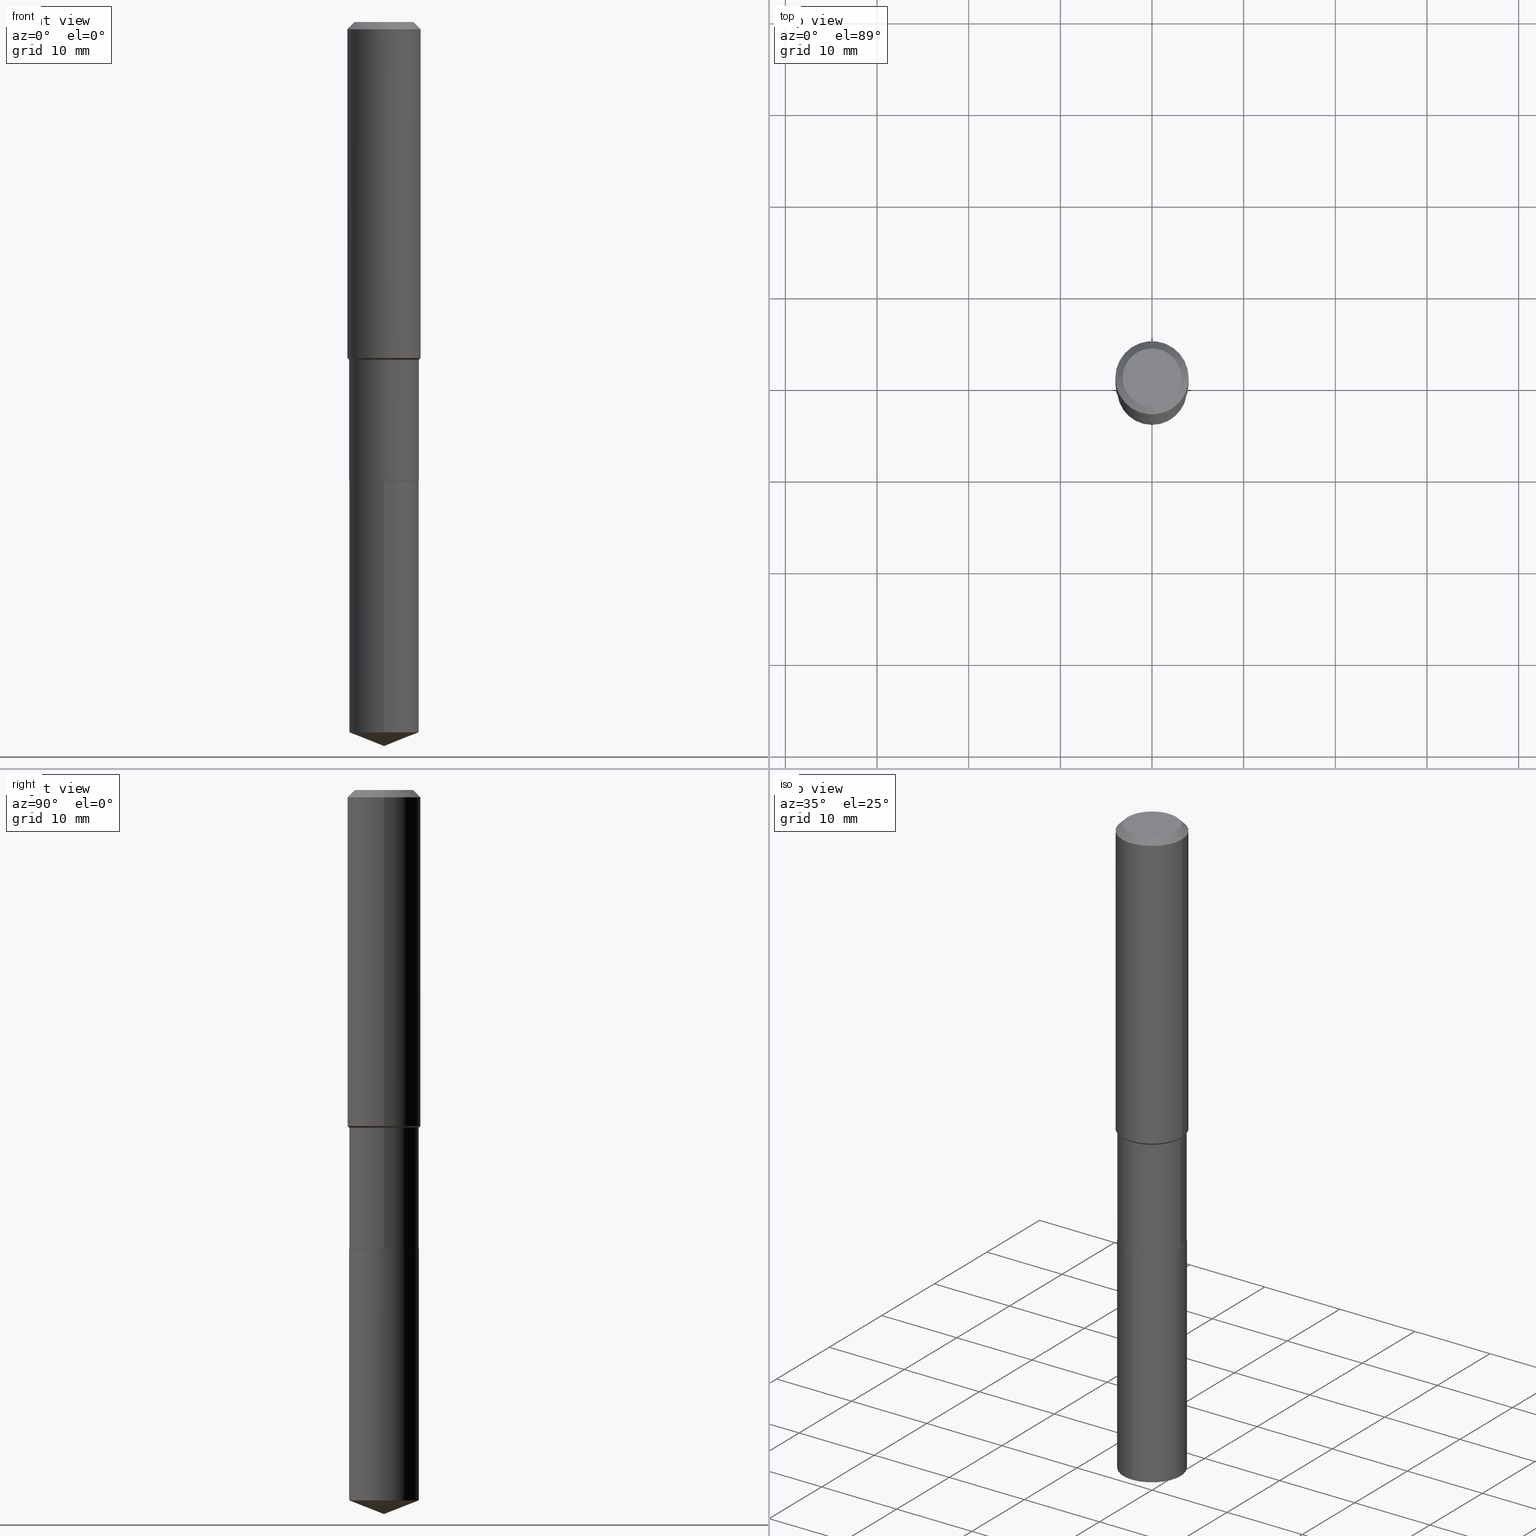
[diagram: canonical four-view strip — front | top / right | iso, engineering-drawing reading convention]
A machine part, canonical four-view strip (front | top / right | iso — engineering-drawing reading convention). The complete STEP part file that produces these views, byte-faithful:
ISO-10303-21;
HEADER;
FILE_DESCRIPTION (( 'STEP AP203' ),
    '1' );
FILE_NAME ('66446.STEP',
    '2024-04-24T22:54:26',
    ( '' ),
    ( '' ),
    'SwSTEP 2.0',
    'SolidWorks 2023',
    '' );
FILE_SCHEMA (( 'CONFIG_CONTROL_DESIGN' ));
ENDSEC;

DATA;
#1 = EDGE_CURVE ( 'NONE', #205, #141, #234, .T. ) ;
#2 = EDGE_CURVE ( 'NONE', #96, #421, #189, .T. ) ;
#3 = ORIENTED_EDGE ( 'NONE', *, *, #134, .T. ) ;
#4 = CARTESIAN_POINT ( 'NONE',  ( 3.548619784655251556E-29, -5.066488570795288817E-15, -1.451100000000000056 ) ) ;
#5 = ORIENTED_EDGE ( 'NONE', *, *, #190, .F. ) ;
#6 = FACE_OUTER_BOUND ( 'NONE', #327, .T. ) ;
#7 = DIRECTION ( 'NONE',  ( 1.000000000000000000, -6.982962677686265133E-15, 0.000000000000000000 ) ) ;
#8 = CARTESIAN_POINT ( 'NONE',  ( 1.062971932697184699E-15, 0.1495999999999931551, -1.968500000000000583 ) ) ;
#9 = DIRECTION ( 'NONE',  ( -2.445468806185136597E-29, 3.491481338843145583E-15, 1.000000000000000000 ) ) ;
#10 = AXIS2_PLACEMENT_3D ( 'NONE', #430, #93, #322 ) ;
#11 = CONICAL_SURFACE ( 'NONE', #281, 0.1495999999999999275, 0.7853981633974492782 ) ;
#12 =( NAMED_UNIT ( * ) PLANE_ANGLE_UNIT ( ) SI_UNIT ( $, .RADIAN. ) );
#13 = LOCAL_TIME ( 18, 54, 26.00000000000000000, #299 ) ;
#14 = EDGE_LOOP ( 'NONE', ( #277, #330, #348, #315 ) ) ;
#15 = ORIENTED_EDGE ( 'NONE', *, *, #476, .T. ) ;
#16 = VECTOR ( 'NONE', #362, 39.37007874015748143 ) ;
#17 = CARTESIAN_POINT ( 'NONE',  ( 7.703226739483226971E-31, -1.099816621735597538E-16, -0.03150000000000019451 ) ) ;
#18 = APPROVAL ( #29, 'UNSPECIFIED' ) ;
#19 = DIRECTION ( 'NONE',  ( -1.000000000000000000, 6.982962677686265922E-15, 0.000000000000000000 ) ) ;
#20 = EDGE_LOOP ( 'NONE', ( #47, #353 ) ) ;
#21 = APPLICATION_PROTOCOL_DEFINITION ( 'international standard', 'config_control_design', 1994, #43 ) ;
#22 = APPLICATION_CONTEXT ( 'configuration controlled 3d designs of mechanical parts and assemblies' ) ;
#23 = EDGE_CURVE ( 'NONE', #183, #356, #64, .T. ) ;
#24 = DIRECTION ( 'NONE',  ( 1.000000000000000000, -6.982962677686267499E-15, 0.000000000000000000 ) ) ;
#25 = APPROVAL_DATE_TIME ( #154, #194 ) ;
#26 = VECTOR ( 'NONE', #287, 39.37007874015748143 ) ;
#27 =( GEOMETRIC_REPRESENTATION_CONTEXT ( 3 ) GLOBAL_UNCERTAINTY_ASSIGNED_CONTEXT ( ( #114 ) ) GLOBAL_UNIT_ASSIGNED_CONTEXT ( ( #291, #12, #112 ) ) REPRESENTATION_CONTEXT ( 'NONE', 'WORKASPACE' ) );
#28 = EDGE_CURVE ( 'NONE', #85, #367, #394, .T. ) ;
#29 = APPROVAL_STATUS ( 'not_yet_approved' ) ;
#30 = PERSON_AND_ORGANIZATION ( #33, #385 ) ;
#31 = CARTESIAN_POINT ( 'NONE',  ( 3.548619784655251556E-29, -5.066488570795288817E-15, -1.451100000000000056 ) ) ;
#32 = DATE_TIME_ROLE ( 'creation_date' ) ;
#33 = PERSON ( 'UNSPECIFIED', 'UNSPECIFIED', 'UNSPECIFIED', ('UNSPECIFIED'), ('UNSPECIFIED'), ('UNSPECIFIED') ) ;
#34 = VECTOR ( 'NONE', #376, 39.37007874015748143 ) ;
#35 = CIRCLE ( 'NONE', #366, 0.1496000000000000107 ) ;
#36 = EDGE_LOOP ( 'NONE', ( #361, #159, #177, #471 ) ) ;
#37 = EDGE_LOOP ( 'NONE', ( #82, #197, #15, #59 ) ) ;
#38 = CARTESIAN_POINT ( 'NONE',  ( -4.719860820353100843E-47, 6.738710358733633822E-33, 1.930043355456229866E-18 ) ) ;
#39 = EDGE_CURVE ( 'NONE', #356, #382, #98, .T. ) ;
#40 = ORIENTED_EDGE ( 'NONE', *, *, #463, .F. ) ;
#41 = CARTESIAN_POINT ( 'NONE',  ( 0.1575000000000000011, -1.209798283909146741E-15, -0.03150000000000019451 ) ) ;
#42 = CARTESIAN_POINT ( 'NONE',  ( 4.813905344975441835E-29, -6.872981015512731707E-15, -1.968500000000000139 ) ) ;
#43 = APPLICATION_CONTEXT ( 'configuration controlled 3d designs of mechanical parts and assemblies' ) ;
#44 = VERTEX_POINT ( 'NONE', #369 ) ;
#45 = DIRECTION ( 'NONE',  ( -6.497071151882122203E-15, -0.9304175679820250178, 0.3665012267242960253 ) ) ;
#46 = DIRECTION ( 'NONE',  ( -2.445468806185136597E-29, 3.491481338843145583E-15, 1.000000000000000000 ) ) ;
#47 = ORIENTED_EDGE ( 'NONE', *, *, #28, .F. ) ;
#48 = LINE ( 'NONE', #354, #71 ) ;
#49 = CARTESIAN_POINT ( 'NONE',  ( 0.000000000000000000, 0.000000000000000000, 0.000000000000000000 ) ) ;
#50 = EDGE_LOOP ( 'NONE', ( #379, #135, #209, #403 ) ) ;
#51 = ADVANCED_FACE ( 'NONE', ( #446 ), #266, .T. ) ;
#52 = CC_DESIGN_PERSON_AND_ORGANIZATION_ASSIGNMENT ( #263, #341, ( #165 ) ) ;
#53 = DIRECTION ( 'NONE',  ( 1.000000000000000000, -6.982962677686265133E-15, 0.000000000000000000 ) ) ;
#54 = AXIS2_PLACEMENT_3D ( 'NONE', #344, #483, #7 ) ;
#55 = ORIENTED_EDGE ( 'NONE', *, *, #184, .F. ) ;
#56 = CARTESIAN_POINT ( 'NONE',  ( 0.1495999999999999275, -6.111139787377153629E-15, -1.451100000000000056 ) ) ;
#57 = ORIENTED_EDGE ( 'NONE', *, *, #1, .F. ) ;
#58 = DIRECTION ( 'NONE',  ( 2.445468806185136597E-29, -3.491481338843145583E-15, -1.000000000000000000 ) ) ;
#59 = ORIENTED_EDGE ( 'NONE', *, *, #23, .F. ) ;
#60 = DIRECTION ( 'NONE',  ( 6.982962677686265922E-15, 1.000000000000000000, -3.491656046039262657E-15 ) ) ;
#61 = DIRECTION ( 'NONE',  ( -2.445346808802135557E-29, 3.491656046039262657E-15, 1.000000000000000000 ) ) ;
#62 = ADVANCED_FACE ( 'NONE', ( #231 ), #88, .T. ) ;
#63 = CIRCLE ( 'NONE', #176, 0.1496000000000000107 ) ;
#64 = LINE ( 'NONE', #195, #212 ) ;
#65 = EDGE_CURVE ( 'NONE', #367, #44, #301, .T. ) ;
#66 = FACE_OUTER_BOUND ( 'NONE', #20, .T. ) ;
#67 = CALENDAR_DATE ( 2024, 24, 4 ) ;
#68 = EDGE_CURVE ( 'NONE', #487, #96, #318, .T. ) ;
#69 = CARTESIAN_POINT ( 'NONE',  ( 1.062971932697157878E-15, 0.1495999999999931274, -1.968500000000000583 ) ) ;
#70 = VECTOR ( 'NONE', #337, 39.37007874015748143 ) ;
#71 = VECTOR ( 'NONE', #92, 39.37007874015748143 ) ;
#72 = APPROVAL_PERSON_ORGANIZATION ( #408, #194, #306 ) ;
#73 = DIRECTION ( 'NONE',  ( -2.445468806185136597E-29, 3.491481338843145583E-15, 1.000000000000000000 ) ) ;
#74 = DIRECTION ( 'NONE',  ( -2.445468806185136597E-29, 3.491481338843145583E-15, 1.000000000000000000 ) ) ;
#75 = MECHANICAL_CONTEXT ( 'NONE', #43, 'mechanical' ) ;
#76 = EDGE_CURVE ( 'NONE', #44, #462, #155, .T. ) ;
#77 = CARTESIAN_POINT ( 'NONE',  ( 4.812682610572349594E-29, -6.871235274843310993E-15, -1.968000000000000194 ) ) ;
#78 = APPLICATION_PROTOCOL_DEFINITION ( 'international standard', 'config_control_design', 1994, #22 ) ;
#79 = CIRCLE ( 'NONE', #99, 0.1496000000000000107 ) ;
#80 = CONICAL_SURFACE ( 'NONE', #359, 99.94676754584030220, 1.195550537616120623 ) ;
#81 = AXIS2_PLACEMENT_3D ( 'NONE', #117, #73, #414 ) ;
#82 = ORIENTED_EDGE ( 'NONE', *, *, #249, .F. ) ;
#83 = DIRECTION ( 'NONE',  ( 1.000000000000000000, -6.982962677686265133E-15, 0.000000000000000000 ) ) ;
#84 = APPROVAL ( #455, 'UNSPECIFIED' ) ;
#85 = VERTEX_POINT ( 'NONE', #106 ) ;
#86 = CARTESIAN_POINT ( 'NONE',  ( -1.044651216581817283E-15, -0.1496000000000068941, -1.968499999999999472 ) ) ;
#87 = CARTESIAN_POINT ( 'NONE',  ( 7.605517644736401976E-29, -1.085974863439131419E-14, -3.110199999999999854 ) ) ;
#88 = CONICAL_SURFACE ( 'NONE', #365, 0.1495999999999999275, 0.7853981633974492782 ) ;
#89 = FACE_OUTER_BOUND ( 'NONE', #418, .T. ) ;
#90 = CONICAL_SURFACE ( 'NONE', #437, 0.1575000000000000011, 0.7853981633974450594 ) ;
#91 = ORIENTED_EDGE ( 'NONE', *, *, #2, .F. ) ;
#92 = DIRECTION ( 'NONE',  ( -2.445468806185136877E-29, 3.491481338843145188E-15, 1.000000000000000000 ) ) ;
#93 = DIRECTION ( 'NONE',  ( -2.445468806185136597E-29, 3.491481338843145583E-15, 1.000000000000000000 ) ) ;
#94 = ORIENTED_EDGE ( 'NONE', *, *, #324, .T. ) ;
#95 = FACE_OUTER_BOUND ( 'NONE', #310, .T. ) ;
#96 = VERTEX_POINT ( 'NONE', #225 ) ;
#97 = CARTESIAN_POINT ( 'NONE',  ( -8.866773861294805176E-28, 1.266073687428369395E-13, 36.25987874015748247 ) ) ;
#98 = CIRCLE ( 'NONE', #371, 0.1575000000000000011 ) ;
#99 = AXIS2_PLACEMENT_3D ( 'NONE', #42, #355, #469 ) ;
#100 = LOCAL_TIME ( 18, 54, 26.00000000000000000, #338 ) ;
#101 = ORIENTED_EDGE ( 'NONE', *, *, #235, .T. ) ;
#102 = ADVANCED_FACE ( 'NONE', ( #296 ), #11, .T. ) ;
#103 = MANIFOLD_SOLID_BREP ( 'Body-Move/Copy2[1]', #490 ) ;
#104 = DIRECTION ( 'NONE',  ( -2.445468806185136597E-29, 3.491481338843145583E-15, 1.000000000000000000 ) ) ;
#105 = AXIS2_PLACEMENT_3D ( 'NONE', #77, #477, #444 ) ;
#106 = CARTESIAN_POINT ( 'NONE',  ( 0.1491000000000000103, -7.914140750755754301E-15, -1.968500000000000139 ) ) ;
#107 = CIRCLE ( 'NONE', #54, 0.1495999999999999275 ) ;
#108 = APPROVAL_PERSON_ORGANIZATION ( #186, #18, #191 ) ;
#109 = DIRECTION ( 'NONE',  ( -6.982962677686265922E-15, -1.000000000000000000, 3.652203200085913145E-15 ) ) ;
#110 = DATE_TIME_ROLE ( 'classification_date' ) ;
#111 = APPROVAL_DATE_TIME ( #478, #18 ) ;
#112 =( NAMED_UNIT ( * ) SI_UNIT ( $, .STERADIAN. ) SOLID_ANGLE_UNIT ( ) );
#113 = AXIS2_PLACEMENT_3D ( 'NONE', #136, #9, #119 ) ;
#114 = UNCERTAINTY_MEASURE_WITH_UNIT (LENGTH_MEASURE( 1.000000000000000082E-05 ), #291, 'distance_accuracy_value', 'NONE');
#115 = CARTESIAN_POINT ( 'NONE',  ( 7.461655936999831044E-29, -1.065364489916640516E-14, -3.051270992848005736 ) ) ;
#116 = DATE_AND_TIME ( #67, #13 ) ;
#117 = CARTESIAN_POINT ( 'NONE',  ( 4.813905344975441835E-29, -6.872981015512731707E-15, -1.968500000000000139 ) ) ;
#118 = MANIFOLD_SOLID_BREP ( 'Body-Move/Copy2[2]', #482 ) ;
#119 = DIRECTION ( 'NONE',  ( 1.000000000000000000, -6.982962677686267499E-15, 4.876176775795936353E-29 ) ) ;
#120 = ORIENTED_EDGE ( 'NONE', *, *, #425, .T. ) ;
#121 = ADVANCED_FACE ( 'NONE', ( #89 ), #377, .T. ) ;
#122 = ORIENTED_EDGE ( 'NONE', *, *, #134, .F. ) ;
#123 = DIRECTION ( 'NONE',  ( -2.445346808802135557E-29, 3.491656046039262657E-15, 1.000000000000000000 ) ) ;
#124 = ADVANCED_FACE ( 'NONE', ( #245 ), #279, .T. ) ;
#125 = DIRECTION ( 'NONE',  ( -2.445346808802135557E-29, 3.491656046039262657E-15, 1.000000000000000000 ) ) ;
#126 = ORIENTED_EDGE ( 'NONE', *, *, #470, .T. ) ;
#127 = ORIENTED_EDGE ( 'NONE', *, *, #309, .T. ) ;
#128 = EDGE_CURVE ( 'NONE', #421, #391, #79, .T. ) ;
#129 = ADVANCED_FACE ( 'NONE', ( #204 ), #288, .T. ) ;
#130 = AXIS2_PLACEMENT_3D ( 'NONE', #360, #145, #19 ) ;
#131 = LOCAL_TIME ( 18, 54, 26.00000000000000000, #375 ) ;
#132 = ORIENTED_EDGE ( 'NONE', *, *, #425, .F. ) ;
#133 = LINE ( 'NONE', #175, #405 ) ;
#134 = EDGE_CURVE ( 'NONE', #166, #141, #133, .T. ) ;
#135 = ORIENTED_EDGE ( 'NONE', *, *, #184, .T. ) ;
#136 = CARTESIAN_POINT ( 'NONE',  ( 0.000000000000000000, 0.000000000000000000, 0.000000000000000000 ) ) ;
#137 = AXIS2_PLACEMENT_3D ( 'NONE', #340, #149, #109 ) ;
#138 = CIRCLE ( 'NONE', #164, 0.1260000000000000009 ) ;
#139 =( LENGTH_UNIT ( ) NAMED_UNIT ( * ) SI_UNIT ( $, .METRE. ) );
#140 = CARTESIAN_POINT ( 'NONE',  ( 7.605517644736401976E-29, -1.085974863439131577E-14, -3.110199999999999854 ) ) ;
#141 = VERTEX_POINT ( 'NONE', #251 ) ;
#142 = CARTESIAN_POINT ( 'NONE',  ( 7.703226739483226971E-31, -1.099816621735597538E-16, -0.03150000000000019451 ) ) ;
#143 = DIRECTION ( 'NONE',  ( 0.7071067811866199593, -2.468850131083015945E-15, 0.7071067811864750752 ) ) ;
#144 = DIRECTION ( 'NONE',  ( 1.000000000000000000, -6.982962677686265133E-15, 0.000000000000000000 ) ) ;
#145 = DIRECTION ( 'NONE',  ( 2.445468806185136597E-29, -3.491481338843145583E-15, -1.000000000000000000 ) ) ;
#146 = EDGE_CURVE ( 'NONE', #462, #44, #63, .T. ) ;
#147 = AXIS2_PLACEMENT_3D ( 'NONE', #280, #390, #357 ) ;
#148 = PRODUCT_DEFINITION ( 'UNKNOWN', '', #151, #347 ) ;
#149 = DIRECTION ( 'NONE',  ( -2.445346808802135557E-29, 3.491656046039262657E-15, 1.000000000000000000 ) ) ;
#150 = APPROVAL_STATUS ( 'not_yet_approved' ) ;
#151 = PRODUCT_DEFINITION_FORMATION_WITH_SPECIFIED_SOURCE ( 'ANY', '', #413, .NOT_KNOWN. ) ;
#152 = CARTESIAN_POINT ( 'NONE',  ( -9.439721640706201686E-47, 1.347742071746726764E-32, 3.860086710912459732E-18 ) ) ;
#153 = PERSON_AND_ORGANIZATION_ROLE ( 'creator' ) ;
#154 = DATE_AND_TIME ( #457, #228 ) ;
#155 = CIRCLE ( 'NONE', #105, 0.1496000000000000107 ) ;
#156 = AXIS2_PLACEMENT_3D ( 'NONE', #241, #246, #392 ) ;
#157 = CARTESIAN_POINT ( 'NONE',  ( -0.1495999999999999830, 1.062971932697109757E-15, -7.358726895021337359E-30 ) ) ;
#158 = PERSON_AND_ORGANIZATION_ROLE ( 'design_owner' ) ;
#159 = ORIENTED_EDGE ( 'NONE', *, *, #276, .T. ) ;
#160 = CARTESIAN_POINT ( 'NONE',  ( 0.1575000000000000011, -1.190510096822576026E-15, -0.03150000000000019451 ) ) ;
#161 = EDGE_CURVE ( 'NONE', #183, #429, #196, .T. ) ;
#162 = ORIENTED_EDGE ( 'NONE', *, *, #65, .F. ) ;
#163 = DIRECTION ( 'NONE',  ( -1.000000000000000000, 6.982962677686265922E-15, -4.876176775795935793E-29 ) ) ;
#164 = AXIS2_PLACEMENT_3D ( 'NONE', #152, #224, #295 ) ;
#165 = SECURITY_CLASSIFICATION ( '', '', #480 ) ;
#166 = VERTEX_POINT ( 'NONE', #56 ) ;
#167 = DIRECTION ( 'NONE',  ( -2.445346808802135557E-29, 3.491656046039262657E-15, 1.000000000000000000 ) ) ;
#168 = CARTESIAN_POINT ( 'NONE',  ( -0.1260000000000000009, 9.348441284752484904E-16, 3.860086710906114178E-18 ) ) ;
#169 = ORIENTED_EDGE ( 'NONE', *, *, #68, .F. ) ;
#170 = LINE ( 'NONE', #160, #411 ) ;
#171 = EDGE_CURVE ( 'NONE', #312, #166, #107, .T. ) ;
#172 = CC_DESIGN_PERSON_AND_ORGANIZATION_ASSIGNMENT ( #30, #297, ( #148 ) ) ;
#173 = ORIENTED_EDGE ( 'NONE', *, *, #470, .F. ) ;
#174 = FACE_OUTER_BOUND ( 'NONE', #431, .T. ) ;
#175 = CARTESIAN_POINT ( 'NONE',  ( 0.1495999999999999275, -6.111139787377153629E-15, -1.451100000000000056 ) ) ;
#176 = AXIS2_PLACEMENT_3D ( 'NONE', #399, #46, #352 ) ;
#177 = ORIENTED_EDGE ( 'NONE', *, *, #476, .F. ) ;
#178 = CYLINDRICAL_SURFACE ( 'NONE', #334, 0.1495999999999999830 ) ;
#179 = ORIENTED_EDGE ( 'NONE', *, *, #39, .F. ) ;
#180 = DIRECTION ( 'NONE',  ( -0.7071067811865482389, 7.493145998870357316E-15, 0.7071067811865467956 ) ) ;
#181 = CC_DESIGN_PERSON_AND_ORGANIZATION_ASSIGNMENT ( #409, #447, ( #151 ) ) ;
#182 = LINE ( 'NONE', #332, #26 ) ;
#183 = VERTEX_POINT ( 'NONE', #168 ) ;
#184 = EDGE_CURVE ( 'NONE', #44, #312, #314, .T. ) ;
#185 = CARTESIAN_POINT ( 'NONE',  ( -0.1575000000000001676, -3.919801059396268302E-15, -1.443199999999999816 ) ) ;
#186 = PERSON_AND_ORGANIZATION ( #33, #385 ) ;
#187 = DIRECTION ( 'NONE',  ( 1.000000000000000000, -6.982962677686265922E-15, 4.876176775795935793E-29 ) ) ;
#188 = VECTOR ( 'NONE', #221, 39.37007874015748854 ) ;
#189 = LINE ( 'NONE', #69, #70 ) ;
#190 = EDGE_CURVE ( 'NONE', #85, #462, #305, .T. ) ;
#191 = APPROVAL_ROLE ( '' ) ;
#192 = DIRECTION ( 'NONE',  ( -2.445468806185136597E-29, 3.491481338843145583E-15, 1.000000000000000000 ) ) ;
#193 = PERSON_AND_ORGANIZATION ( #33, #385 ) ;
#194 = APPROVAL ( #150, 'UNSPECIFIED' ) ;
#195 = CARTESIAN_POINT ( 'NONE',  ( -0.1575000000000000011, 9.898349595620272334E-16, -0.03150000000000019451 ) ) ;
#196 = CIRCLE ( 'NONE', #260, 0.1260000000000000009 ) ;
#197 = ORIENTED_EDGE ( 'NONE', *, *, #448, .T. ) ;
#198 = CC_DESIGN_PERSON_AND_ORGANIZATION_ASSIGNMENT ( #345, #158, ( #413 ) ) ;
#199 = DIRECTION ( 'NONE',  ( 1.000000000000000000, -6.982962677686265133E-15, 0.000000000000000000 ) ) ;
#200 = DIMENSIONAL_EXPONENTS ( 1.000000000000000000, 0.000000000000000000, 0.000000000000000000, 0.000000000000000000, 0.000000000000000000, 0.000000000000000000, 0.000000000000000000 ) ;
#201 = EDGE_LOOP ( 'NONE', ( #247, #215 ) ) ;
#202 = AXIS2_PLACEMENT_3D ( 'NONE', #468, #286, #24 ) ;
#203 = CIRCLE ( 'NONE', #419, 0.1575000000000001676 ) ;
#204 = FACE_OUTER_BOUND ( 'NONE', #36, .T. ) ;
#205 = VERTEX_POINT ( 'NONE', #185 ) ;
#206 = FACE_OUTER_BOUND ( 'NONE', #400, .T. ) ;
#207 = CARTESIAN_POINT ( 'NONE',  ( -0.1495999999999999275, -4.905889990122190345E-15, -1.451100000000000056 ) ) ;
#208 = CARTESIAN_POINT ( 'NONE',  ( -9.439721640706201686E-47, 1.347742071746726764E-32, 3.860086710912459732E-18 ) ) ;
#209 = ORIENTED_EDGE ( 'NONE', *, *, #381, .F. ) ;
#210 = ORIENTED_EDGE ( 'NONE', *, *, #381, .T. ) ;
#211 = CARTESIAN_POINT ( 'NONE',  ( 4.813905344975441835E-29, -6.872981015512731707E-15, -1.968500000000000139 ) ) ;
#212 = VECTOR ( 'NONE', #233, 39.37007874015748143 ) ;
#213 = CIRCLE ( 'NONE', #271, 0.1491000000000000103 ) ;
#214 = ADVANCED_FACE ( 'NONE', ( #66 ), #217, .F. ) ;
#215 = ORIENTED_EDGE ( 'NONE', *, *, #249, .T. ) ;
#216 = CARTESIAN_POINT ( 'NONE',  ( 4.813905344975441835E-29, -6.872981015512731707E-15, -1.968500000000000139 ) ) ;
#217 = PLANE ( 'NONE',  #479 ) ;
#218 = CIRCLE ( 'NONE', #265, 0.1575000000000000011 ) ;
#219 = ORIENTED_EDGE ( 'NONE', *, *, #304, .F. ) ;
#220 = ADVANCED_FACE ( 'NONE', ( #406 ), #466, .T. ) ;
#221 = DIRECTION ( 'NONE',  ( 6.611014441532069744E-15, 0.9304175679820275713, 0.3665012267242894195 ) ) ;
#222 = DATE_AND_TIME ( #417, #273 ) ;
#223 = FACE_OUTER_BOUND ( 'NONE', #50, .T. ) ;
#224 = DIRECTION ( 'NONE',  ( -2.445468806185136597E-29, 3.491481338843145583E-15, 1.000000000000000000 ) ) ;
#225 = CARTESIAN_POINT ( 'NONE',  ( 1.062971932697184502E-15, 0.1495999999999893804, -3.051270992848006181 ) ) ;
#226 = APPROVAL_DATE_TIME ( #222, #84 ) ;
#227 = CONICAL_SURFACE ( 'NONE', #454, 99.94676754584030220, 1.195550537616120623 ) ;
#228 = LOCAL_TIME ( 18, 54, 26.00000000000000000, #264 ) ;
#229 = DIRECTION ( 'NONE',  ( -2.445468806185136597E-29, 3.491481338843145583E-15, 1.000000000000000000 ) ) ;
#230 = CC_DESIGN_DATE_AND_TIME_ASSIGNMENT ( #116, #110, ( #165 ) ) ;
#231 = FACE_OUTER_BOUND ( 'NONE', #461, .T. ) ;
#232 = CALENDAR_DATE ( 2024, 24, 4 ) ;
#233 = DIRECTION ( 'NONE',  ( -0.7071067811865452413, 2.468850131082233000E-15, -0.7071067811865497932 ) ) ;
#234 = CIRCLE ( 'NONE', #202, 0.1575000000000001676 ) ;
#235 = EDGE_CURVE ( 'NONE', #364, #96, #329, .T. ) ;
#236 = VECTOR ( 'NONE', #143, 39.37007874015748143 ) ;
#237 = ORIENTED_EDGE ( 'NONE', *, *, #76, .T. ) ;
#238 = EDGE_LOOP ( 'NONE', ( #210, #126, #420, #122 ) ) ;
#239 = DIRECTION ( 'NONE',  ( 0.7071067811865452413, -7.319954787623248157E-15, -0.7071067811865497932 ) ) ;
#240 = ORIENTED_EDGE ( 'NONE', *, *, #309, .F. ) ;
#241 = CARTESIAN_POINT ( 'NONE',  ( 4.813905344975441835E-29, -6.872981015512731707E-15, -1.968500000000000139 ) ) ;
#242 = AXIS2_PLACEMENT_3D ( 'NONE', #115, #262, #415 ) ;
#243 = CONICAL_SURFACE ( 'NONE', #147, 0.1491000000000000103, 0.7853981633975507526 ) ;
#244 = CARTESIAN_POINT ( 'NONE',  ( 4.813905344975441835E-29, -6.872981015512731707E-15, -1.968500000000000139 ) ) ;
#245 = FACE_OUTER_BOUND ( 'NONE', #321, .T. ) ;
#246 = DIRECTION ( 'NONE',  ( -2.445346808802135557E-29, 3.491656046039262657E-15, 1.000000000000000000 ) ) ;
#247 = ORIENTED_EDGE ( 'NONE', *, *, #161, .T. ) ;
#248 = CARTESIAN_POINT ( 'NONE',  ( 0.1496000000000000107, -7.915886491425176593E-15, -1.968000000000000194 ) ) ;
#249 = EDGE_CURVE ( 'NONE', #429, #183, #138, .T. ) ;
#250 = VECTOR ( 'NONE', #45, 39.37007874015748143 ) ;
#251 = CARTESIAN_POINT ( 'NONE',  ( 0.1575000000000001676, -6.138722489954014963E-15, -1.443199999999999816 ) ) ;
#252 = ORIENTED_EDGE ( 'NONE', *, *, #235, .F. ) ;
#253 = DIRECTION ( 'NONE',  ( 2.445346808802135276E-29, -3.491656046039262657E-15, -1.000000000000000000 ) ) ;
#254 = ORIENTED_EDGE ( 'NONE', *, *, #463, .T. ) ;
#255 = DIRECTION ( 'NONE',  ( -2.438088387897960049E-29, 3.491481338843145188E-15, 1.000000000000000000 ) ) ;
#256 = ADVANCED_FACE ( 'NONE', ( #449 ), #293, .T. ) ;
#257 = PRODUCT_RELATED_PRODUCT_CATEGORY ( 'detail', '', ( #413 ) ) ;
#258 = ORIENTED_EDGE ( 'NONE', *, *, #28, .T. ) ;
#259 = LENGTH_MEASURE_WITH_UNIT ( LENGTH_MEASURE( 0.02539999999999999897 ), #139 );
#260 = AXIS2_PLACEMENT_3D ( 'NONE', #208, #284, #433 ) ;
#261 = APPROVAL_PERSON_ORGANIZATION ( #302, #84, #269 ) ;
#262 = DIRECTION ( 'NONE',  ( -2.445346808802135557E-29, 3.491656046039262657E-15, 1.000000000000000000 ) ) ;
#263 = PERSON_AND_ORGANIZATION ( #33, #385 ) ;
#264 = COORDINATED_UNIVERSAL_TIME_OFFSET ( 5, 0, .BEHIND. ) ;
#265 = AXIS2_PLACEMENT_3D ( 'NONE', #142, #440, #325 ) ;
#266 = CYLINDRICAL_SURFACE ( 'NONE', #137, 0.1496000000000000107 ) ;
#267 = COORDINATED_UNIVERSAL_TIME_OFFSET ( 5, 0, .BEHIND. ) ;
#268 = EDGE_CURVE ( 'NONE', #141, #205, #203, .T. ) ;
#269 = APPROVAL_ROLE ( '' ) ;
#270 = ORIENTED_EDGE ( 'NONE', *, *, #190, .T. ) ;
#271 = AXIS2_PLACEMENT_3D ( 'NONE', #211, #486, #83 ) ;
#272 = ORIENTED_EDGE ( 'NONE', *, *, #439, .T. ) ;
#273 = LOCAL_TIME ( 18, 54, 26.00000000000000000, #267 ) ;
#274 = EDGE_LOOP ( 'NONE', ( #91, #465, #254, #467 ) ) ;
#275 = DIRECTION ( 'NONE',  ( -6.982962677686265922E-15, -1.000000000000000000, 3.652203200085913145E-15 ) ) ;
#276 = EDGE_CURVE ( 'NONE', #205, #356, #339, .T. ) ;
#277 = ORIENTED_EDGE ( 'NONE', *, *, #448, .F. ) ;
#278 = PLANE ( 'NONE',  #326 ) ;
#279 = CYLINDRICAL_SURFACE ( 'NONE', #319, 0.1575000000000000844 ) ;
#280 = CARTESIAN_POINT ( 'NONE',  ( 4.813905344975441835E-29, -6.872981015512731707E-15, -1.968500000000000139 ) ) ;
#281 = AXIS2_PLACEMENT_3D ( 'NONE', #4, #282, #53 ) ;
#282 = DIRECTION ( 'NONE',  ( -2.445468806185136597E-29, 3.491481338843145583E-15, 1.000000000000000000 ) ) ;
#283 = EDGE_LOOP ( 'NONE', ( #162, #272, #270, #323 ) ) ;
#284 = DIRECTION ( 'NONE',  ( -2.445468806185136597E-29, 3.491481338843145583E-15, 1.000000000000000000 ) ) ;
#285 = ADVANCED_FACE ( 'NONE', ( #489 ), #278, .F. ) ;
#286 = DIRECTION ( 'NONE',  ( -2.445468806185136597E-29, 3.491481338843145583E-15, 1.000000000000000000 ) ) ;
#287 = DIRECTION ( 'NONE',  ( -2.445468806185136877E-29, 3.491481338843145188E-15, 1.000000000000000000 ) ) ;
#288 = CYLINDRICAL_SURFACE ( 'NONE', #113, 0.1575000000000000844 ) ;
#289 = CARTESIAN_POINT ( 'NONE',  ( -0.1491000000000000103, -5.810912569320311056E-15, -1.968500000000000139 ) ) ;
#290 = CARTESIAN_POINT ( 'NONE',  ( 4.813905344975441835E-29, -6.872981015512731707E-15, -1.968500000000000139 ) ) ;
#291 =( CONVERSION_BASED_UNIT ( 'INCH', #259 ) LENGTH_UNIT ( ) NAMED_UNIT ( #200 ) );
#292 = AXIS2_PLACEMENT_3D ( 'NONE', #441, #104, #199 ) ;
#293 = CONICAL_SURFACE ( 'NONE', #81, 0.1491000000000000103, 0.7853981633975507526 ) ;
#294 = CC_DESIGN_APPROVAL ( #84, ( #165 ) ) ;
#295 = DIRECTION ( 'NONE',  ( 1.000000000000000000, -6.982962677686265922E-15, 4.876281427513067258E-29 ) ) ;
#296 = FACE_OUTER_BOUND ( 'NONE', #238, .T. ) ;
#297 = PERSON_AND_ORGANIZATION_ROLE ( 'creator' ) ;
#298 = CARTESIAN_POINT ( 'NONE',  ( -0.1491000000000000103, -5.813561796494422257E-15, -1.968500000000000139 ) ) ;
#299 = COORDINATED_UNIVERSAL_TIME_OFFSET ( 5, 0, .BEHIND. ) ;
#300 = VECTOR ( 'NONE', #380, 39.37007874015748143 ) ;
#301 = LINE ( 'NONE', #298, #34 ) ;
#302 = PERSON_AND_ORGANIZATION ( #33, #385 ) ;
#303 = CARTESIAN_POINT ( 'NONE',  ( 3.529300581086388319E-29, -5.038905868218426694E-15, -1.443199999999999816 ) ) ;
#304 = EDGE_CURVE ( 'NONE', #96, #487, #460, .T. ) ;
#305 = LINE ( 'NONE', #456, #236 ) ;
#306 = APPROVAL_ROLE ( '' ) ;
#307 = EDGE_LOOP ( 'NONE', ( #252, #127, #219 ) ) ;
#308 = AXIS2_PLACEMENT_3D ( 'NONE', #290, #192, #144 ) ;
#309 = EDGE_CURVE ( 'NONE', #364, #487, #424, .T. ) ;
#310 = EDGE_LOOP ( 'NONE', ( #258, #346, #378, #5 ) ) ;
#311 = CARTESIAN_POINT ( 'NONE',  ( 7.461655936999831044E-29, -1.065364489916640516E-14, -3.051270992848005736 ) ) ;
#312 = VERTEX_POINT ( 'NONE', #207 ) ;
#313 = CC_DESIGN_PERSON_AND_ORGANIZATION_ASSIGNMENT ( #193, #153, ( #151 ) ) ;
#314 = LINE ( 'NONE', #157, #372 ) ;
#315 = ORIENTED_EDGE ( 'NONE', *, *, #39, .T. ) ;
#316 = ORIENTED_EDGE ( 'NONE', *, *, #68, .T. ) ;
#317 = CYLINDRICAL_SURFACE ( 'NONE', #156, 0.1496000000000000107 ) ;
#318 = CIRCLE ( 'NONE', #242, 0.1496000000000000107 ) ;
#319 = AXIS2_PLACEMENT_3D ( 'NONE', #49, #393, #436 ) ;
#320 = ADVANCED_FACE ( 'NONE', ( #223 ), #178, .T. ) ;
#321 = EDGE_LOOP ( 'NONE', ( #350, #395, #94, #179 ) ) ;
#322 = DIRECTION ( 'NONE',  ( 1.000000000000000000, -6.982962677686265922E-15, 4.876176775795935793E-29 ) ) ;
#323 = ORIENTED_EDGE ( 'NONE', *, *, #76, .F. ) ;
#324 = EDGE_CURVE ( 'NONE', #141, #382, #182, .T. ) ;
#325 = DIRECTION ( 'NONE',  ( 1.000000000000000000, -6.982962677686265922E-15, 0.000000000000000000 ) ) ;
#326 = AXIS2_PLACEMENT_3D ( 'NONE', #38, #349, #163 ) ;
#327 = EDGE_LOOP ( 'NONE', ( #120, #384 ) ) ;
#328 = LINE ( 'NONE', #434, #16 ) ;
#329 = LINE ( 'NONE', #443, #188 ) ;
#330 = ORIENTED_EDGE ( 'NONE', *, *, #161, .F. ) ;
#331 = DATE_AND_TIME ( #370, #100 ) ;
#332 = CARTESIAN_POINT ( 'NONE',  ( 0.1575000000000000844, -1.099816621735587677E-15, 7.679978421878603638E-30 ) ) ;
#333 = CARTESIAN_POINT ( 'NONE',  ( 4.813905344975441835E-29, -6.872981015512731707E-15, -1.968500000000000139 ) ) ;
#334 = AXIS2_PLACEMENT_3D ( 'NONE', #473, #401, #187 ) ;
#335 = ADVANCED_FACE ( 'NONE', ( #435 ), #227, .T. ) ;
#336 = DIRECTION ( 'NONE',  ( 1.000000000000000000, -6.982962677686265922E-15, 0.000000000000000000 ) ) ;
#337 = DIRECTION ( 'NONE',  ( -2.445346808802135557E-29, 3.491656046039262657E-15, 1.000000000000000000 ) ) ;
#338 = COORDINATED_UNIVERSAL_TIME_OFFSET ( 5, 0, .BEHIND. ) ;
#339 = LINE ( 'NONE', #387, #300 ) ;
#340 = CARTESIAN_POINT ( 'NONE',  ( 4.813905344975441835E-29, -6.872981015512731707E-15, -1.968500000000000139 ) ) ;
#341 = PERSON_AND_ORGANIZATION_ROLE ( 'classification_officer' ) ;
#342 = CC_DESIGN_DATE_AND_TIME_ASSIGNMENT ( #331, #32, ( #148 ) ) ;
#343 = AXIS2_PLACEMENT_3D ( 'NONE', #311, #125, #423 ) ;
#344 = CARTESIAN_POINT ( 'NONE',  ( 3.548619784655251556E-29, -5.066488570795288817E-15, -1.451100000000000056 ) ) ;
#345 = PERSON_AND_ORGANIZATION ( #33, #385 ) ;
#346 = ORIENTED_EDGE ( 'NONE', *, *, #65, .T. ) ;
#347 = DESIGN_CONTEXT ( 'detailed design', #22, 'design' ) ;
#348 = ORIENTED_EDGE ( 'NONE', *, *, #23, .T. ) ;
#349 = DIRECTION ( 'NONE',  ( 2.438088387897960049E-29, -3.491481338843145188E-15, -1.000000000000000000 ) ) ;
#350 = ORIENTED_EDGE ( 'NONE', *, *, #276, .F. ) ;
#351 = CC_DESIGN_APPROVAL ( #194, ( #151 ) ) ;
#352 = DIRECTION ( 'NONE',  ( 1.000000000000000000, -6.982962677686268288E-15, 0.000000000000000000 ) ) ;
#353 = ORIENTED_EDGE ( 'NONE', *, *, #439, .F. ) ;
#354 = CARTESIAN_POINT ( 'NONE',  ( 0.1495999999999999830, -1.044651216581865206E-15, 7.294760456590718926E-30 ) ) ;
#355 = DIRECTION ( 'NONE',  ( -2.445346808802135557E-29, 3.491656046039262657E-15, 1.000000000000000000 ) ) ;
#356 = VERTEX_POINT ( 'NONE', #397 ) ;
#357 = DIRECTION ( 'NONE',  ( 1.000000000000000000, -6.982962677686265133E-15, 0.000000000000000000 ) ) ;
#358 = ADVANCED_FACE ( 'NONE', ( #438 ), #90, .T. ) ;
#359 = AXIS2_PLACEMENT_3D ( 'NONE', #432, #167, #488 ) ;
#360 = CARTESIAN_POINT ( 'NONE',  ( 7.703226739483226971E-31, -1.099816621735597538E-16, -0.03150000000000019451 ) ) ;
#361 = ORIENTED_EDGE ( 'NONE', *, *, #268, .T. ) ;
#362 = DIRECTION ( 'NONE',  ( -2.445346808802135557E-29, 3.491656046039262657E-15, 1.000000000000000000 ) ) ;
#363 = DIRECTION ( 'NONE',  ( -1.000000000000000000, 6.982962677686265922E-15, 0.000000000000000000 ) ) ;
#364 = VERTEX_POINT ( 'NONE', #140 ) ;
#365 = AXIS2_PLACEMENT_3D ( 'NONE', #31, #374, #450 ) ;
#366 = AXIS2_PLACEMENT_3D ( 'NONE', #244, #123, #275 ) ;
#367 = VERTEX_POINT ( 'NONE', #289 ) ;
#368 = LINE ( 'NONE', #475, #428 ) ;
#369 = CARTESIAN_POINT ( 'NONE',  ( -0.1496000000000000107, -4.905889990122190345E-15, -1.968000000000000194 ) ) ;
#370 = CALENDAR_DATE ( 2024, 24, 4 ) ;
#371 = AXIS2_PLACEMENT_3D ( 'NONE', #481, #74, #336 ) ;
#372 = VECTOR ( 'NONE', #464, 39.37007874015748143 ) ;
#373 = CC_DESIGN_SECURITY_CLASSIFICATION ( #165, ( #151 ) ) ;
#374 = DIRECTION ( 'NONE',  ( -2.445468806185136597E-29, 3.491481338843145583E-15, 1.000000000000000000 ) ) ;
#375 = COORDINATED_UNIVERSAL_TIME_OFFSET ( 5, 0, .BEHIND. ) ;
#376 = DIRECTION ( 'NONE',  ( -0.7071067811866199593, 7.493145998870616062E-15, 0.7071067811864750752 ) ) ;
#377 = CYLINDRICAL_SURFACE ( 'NONE', #10, 0.1495999999999999830 ) ;
#378 = ORIENTED_EDGE ( 'NONE', *, *, #146, .F. ) ;
#379 = ORIENTED_EDGE ( 'NONE', *, *, #146, .T. ) ;
#380 = DIRECTION ( 'NONE',  ( -2.445468806185136877E-29, 3.491481338843145188E-15, 1.000000000000000000 ) ) ;
#381 = EDGE_CURVE ( 'NONE', #166, #312, #383, .T. ) ;
#382 = VERTEX_POINT ( 'NONE', #41 ) ;
#383 = CIRCLE ( 'NONE', #292, 0.1495999999999999275 ) ;
#384 = ORIENTED_EDGE ( 'NONE', *, *, #128, .T. ) ;
#385 = ORGANIZATION ( 'UNSPECIFIED', 'UNSPECIFIED', '' ) ;
#386 = ADVANCED_BREP_SHAPE_REPRESENTATION ( '66446', ( #103, #118, #445 ), #27 ) ;
#387 = CARTESIAN_POINT ( 'NONE',  ( -0.1575000000000000844, 1.119104808822158392E-15, -7.747322767151481189E-30 ) ) ;
#388 = ADVANCED_FACE ( 'NONE', ( #206 ), #80, .T. ) ;
#389 = ORIENTED_EDGE ( 'NONE', *, *, #410, .T. ) ;
#390 = DIRECTION ( 'NONE',  ( -2.445468806185136597E-29, 3.491481338843145583E-15, 1.000000000000000000 ) ) ;
#391 = VERTEX_POINT ( 'NONE', #86 ) ;
#392 = DIRECTION ( 'NONE',  ( -6.982962677686265922E-15, -1.000000000000000000, 3.652203200085913145E-15 ) ) ;
#393 = DIRECTION ( 'NONE',  ( -2.445468806185136597E-29, 3.491481338843145583E-15, 1.000000000000000000 ) ) ;
#394 = CIRCLE ( 'NONE', #308, 0.1491000000000000103 ) ;
#395 = ORIENTED_EDGE ( 'NONE', *, *, #1, .T. ) ;
#396 = CARTESIAN_POINT ( 'NONE',  ( -1.044651216581790856E-15, -0.1496000000000106689, -3.051270992848004848 ) ) ;
#397 = CARTESIAN_POINT ( 'NONE',  ( -0.1575000000000000011, -1.455338956373834684E-15, -0.03150000000000019451 ) ) ;
#398 = CC_DESIGN_APPROVAL ( #18, ( #148 ) ) ;
#399 = CARTESIAN_POINT ( 'NONE',  ( 4.812682610572349594E-29, -6.871235274843310993E-15, -1.968000000000000194 ) ) ;
#400 = EDGE_LOOP ( 'NONE', ( #240, #101, #169 ) ) ;
#401 = DIRECTION ( 'NONE',  ( -2.445468806185136597E-29, 3.491481338843145583E-15, 1.000000000000000000 ) ) ;
#402 = DIRECTION ( 'NONE',  ( -6.982962677686266711E-15, -1.000000000000000000, 3.498627837349992784E-15 ) ) ;
#403 = ORIENTED_EDGE ( 'NONE', *, *, #410, .F. ) ;
#404 = PRODUCT_DEFINITION_SHAPE ( 'NONE', 'NONE',  #148 ) ;
#405 = VECTOR ( 'NONE', #426, 39.37007874015748143 ) ;
#406 = FACE_OUTER_BOUND ( 'NONE', #37, .T. ) ;
#407 = ADVANCED_FACE ( 'NONE', ( #95 ), #243, .T. ) ;
#408 = PERSON_AND_ORGANIZATION ( #33, #385 ) ;
#409 = PERSON_AND_ORGANIZATION ( #33, #385 ) ;
#410 = EDGE_CURVE ( 'NONE', #462, #166, #48, .T. ) ;
#411 = VECTOR ( 'NONE', #239, 39.37007874015748143 ) ;
#412 = DIRECTION ( 'NONE',  ( 0.000000000000000000, 0.000000000000000000, 1.000000000000000000 ) ) ;
#413 = PRODUCT ( '66446', '66446', '', ( #75 ) ) ;
#414 = DIRECTION ( 'NONE',  ( 1.000000000000000000, -6.982962677686265133E-15, 0.000000000000000000 ) ) ;
#415 = DIRECTION ( 'NONE',  ( -6.982962677686265922E-15, -1.000000000000000000, 3.652203200085913145E-15 ) ) ;
#416 = DIRECTION ( 'NONE',  ( 1.000000000000000000, -6.982962677686267499E-15, 0.000000000000000000 ) ) ;
#417 = CALENDAR_DATE ( 2024, 24, 4 ) ;
#418 = EDGE_LOOP ( 'NONE', ( #55, #237, #389, #485 ) ) ;
#419 = AXIS2_PLACEMENT_3D ( 'NONE', #303, #229, #416 ) ;
#420 = ORIENTED_EDGE ( 'NONE', *, *, #268, .F. ) ;
#421 = VERTEX_POINT ( 'NONE', #8 ) ;
#422 = CARTESIAN_POINT ( 'NONE',  ( 0.1260000000000000009, -1.027466422270894443E-15, 3.860086710919128072E-18 ) ) ;
#423 = DIRECTION ( 'NONE',  ( -6.982962677686265922E-15, -1.000000000000000000, 3.652203200085913145E-15 ) ) ;
#424 = LINE ( 'NONE', #87, #250 ) ;
#425 = EDGE_CURVE ( 'NONE', #391, #421, #35, .T. ) ;
#426 = DIRECTION ( 'NONE',  ( 0.7071067811865482389, -2.468850131082264555E-15, 0.7071067811865467956 ) ) ;
#427 = ADVANCED_FACE ( 'NONE', ( #174 ), #317, .T. ) ;
#428 = VECTOR ( 'NONE', #180, 39.37007874015748143 ) ;
#429 = VERTEX_POINT ( 'NONE', #422 ) ;
#430 = CARTESIAN_POINT ( 'NONE',  ( 0.000000000000000000, 0.000000000000000000, 0.000000000000000000 ) ) ;
#431 = EDGE_LOOP ( 'NONE', ( #316, #474, #132, #40 ) ) ;
#432 = CARTESIAN_POINT ( 'NONE',  ( -8.866773861294805176E-28, 1.266073687428369395E-13, 36.25987874015748247 ) ) ;
#433 = DIRECTION ( 'NONE',  ( 1.000000000000000000, -6.982962677686265922E-15, 4.876281427513067258E-29 ) ) ;
#434 = CARTESIAN_POINT ( 'NONE',  ( -1.044651216581817283E-15, -0.1496000000000068941, -1.968499999999999472 ) ) ;
#435 = FACE_OUTER_BOUND ( 'NONE', #307, .T. ) ;
#436 = DIRECTION ( 'NONE',  ( 1.000000000000000000, -6.982962677686267499E-15, 4.876176775795936353E-29 ) ) ;
#437 = AXIS2_PLACEMENT_3D ( 'NONE', #17, #58, #363 ) ;
#438 = FACE_OUTER_BOUND ( 'NONE', #14, .T. ) ;
#439 = EDGE_CURVE ( 'NONE', #367, #85, #213, .T. ) ;
#440 = DIRECTION ( 'NONE',  ( -2.445468806185136597E-29, 3.491481338843145583E-15, 1.000000000000000000 ) ) ;
#441 = CARTESIAN_POINT ( 'NONE',  ( 3.548619784655251556E-29, -5.066488570795288817E-15, -1.451100000000000056 ) ) ;
#442 = DIRECTION ( 'NONE',  ( 1.000000000000000000, -6.982962677686265922E-15, 4.876176775795935793E-29 ) ) ;
#443 = CARTESIAN_POINT ( 'NONE',  ( 7.606002160129744613E-29, -1.085906081216020175E-14, -3.110199999999999854 ) ) ;
#444 = DIRECTION ( 'NONE',  ( 1.000000000000000000, -6.982962677686268288E-15, 0.000000000000000000 ) ) ;
#445 = AXIS2_PLACEMENT_3D ( 'NONE', #451, #412, #484 ) ;
#446 = FACE_OUTER_BOUND ( 'NONE', #274, .T. ) ;
#447 = PERSON_AND_ORGANIZATION_ROLE ( 'design_supplier' ) ;
#448 = EDGE_CURVE ( 'NONE', #429, #382, #170, .T. ) ;
#449 = FACE_OUTER_BOUND ( 'NONE', #283, .T. ) ;
#450 = DIRECTION ( 'NONE',  ( 1.000000000000000000, -6.982962677686265133E-15, 0.000000000000000000 ) ) ;
#451 = CARTESIAN_POINT ( 'NONE',  ( 0.000000000000000000, 0.000000000000000000, 0.000000000000000000 ) ) ;
#452 = ADVANCED_FACE ( 'NONE', ( #6 ), #459, .F. ) ;
#453 = SHAPE_DEFINITION_REPRESENTATION ( #404, #386 ) ;
#454 = AXIS2_PLACEMENT_3D ( 'NONE', #97, #61, #402 ) ;
#455 = APPROVAL_STATUS ( 'not_yet_approved' ) ;
#456 = CARTESIAN_POINT ( 'NONE',  ( 0.1491000000000000103, -7.914140750755754301E-15, -1.968500000000000139 ) ) ;
#457 = CALENDAR_DATE ( 2024, 24, 4 ) ;
#458 = ORIENTED_EDGE ( 'NONE', *, *, #171, .T. ) ;
#459 = PLANE ( 'NONE',  #472 ) ;
#460 = CIRCLE ( 'NONE', #343, 0.1496000000000000107 ) ;
#461 = EDGE_LOOP ( 'NONE', ( #173, #458, #3, #57 ) ) ;
#462 = VERTEX_POINT ( 'NONE', #248 ) ;
#463 = EDGE_CURVE ( 'NONE', #487, #391, #328, .T. ) ;
#464 = DIRECTION ( 'NONE',  ( -2.445468806185136877E-29, 3.491481338843145188E-15, 1.000000000000000000 ) ) ;
#465 = ORIENTED_EDGE ( 'NONE', *, *, #304, .T. ) ;
#466 = CONICAL_SURFACE ( 'NONE', #130, 0.1575000000000000011, 0.7853981633974450594 ) ;
#467 = ORIENTED_EDGE ( 'NONE', *, *, #128, .F. ) ;
#468 = CARTESIAN_POINT ( 'NONE',  ( 3.529300581086388319E-29, -5.038905868218426694E-15, -1.443199999999999816 ) ) ;
#469 = DIRECTION ( 'NONE',  ( -6.982962677686265922E-15, -1.000000000000000000, 3.652203200085913145E-15 ) ) ;
#470 = EDGE_CURVE ( 'NONE', #312, #205, #368, .T. ) ;
#471 = ORIENTED_EDGE ( 'NONE', *, *, #324, .F. ) ;
#472 = AXIS2_PLACEMENT_3D ( 'NONE', #216, #253, #60 ) ;
#473 = CARTESIAN_POINT ( 'NONE',  ( 0.000000000000000000, 0.000000000000000000, 0.000000000000000000 ) ) ;
#474 = ORIENTED_EDGE ( 'NONE', *, *, #2, .T. ) ;
#475 = CARTESIAN_POINT ( 'NONE',  ( -0.1495999999999999275, -4.003516638098179257E-15, -1.451100000000000056 ) ) ;
#476 = EDGE_CURVE ( 'NONE', #382, #356, #218, .T. ) ;
#477 = DIRECTION ( 'NONE',  ( -2.445468806185136597E-29, 3.491481338843145583E-15, 1.000000000000000000 ) ) ;
#478 = DATE_AND_TIME ( #232, #131 ) ;
#479 = AXIS2_PLACEMENT_3D ( 'NONE', #333, #255, #442 ) ;
#480 = SECURITY_CLASSIFICATION_LEVEL ( 'unclassified' ) ;
#481 = CARTESIAN_POINT ( 'NONE',  ( 7.703226739483226971E-31, -1.099816621735597538E-16, -0.03150000000000019451 ) ) ;
#482 = CLOSED_SHELL ( 'NONE', ( #407, #220, #129, #102, #320, #121, #62, #124, #358, #285, #214, #256 ) ) ;
#483 = DIRECTION ( 'NONE',  ( -2.445468806185136597E-29, 3.491481338843145583E-15, 1.000000000000000000 ) ) ;
#484 = DIRECTION ( 'NONE',  ( 1.000000000000000000, 0.000000000000000000, 0.000000000000000000 ) ) ;
#485 = ORIENTED_EDGE ( 'NONE', *, *, #171, .F. ) ;
#486 = DIRECTION ( 'NONE',  ( -2.445468806185136597E-29, 3.491481338843145583E-15, 1.000000000000000000 ) ) ;
#487 = VERTEX_POINT ( 'NONE', #396 ) ;
#488 = DIRECTION ( 'NONE',  ( -6.982962677686266711E-15, -1.000000000000000000, 3.498627837349992784E-15 ) ) ;
#489 = FACE_OUTER_BOUND ( 'NONE', #201, .T. ) ;
#490 = CLOSED_SHELL ( 'NONE', ( #427, #388, #335, #51, #452 ) ) ;
ENDSEC;
END-ISO-10303-21;
